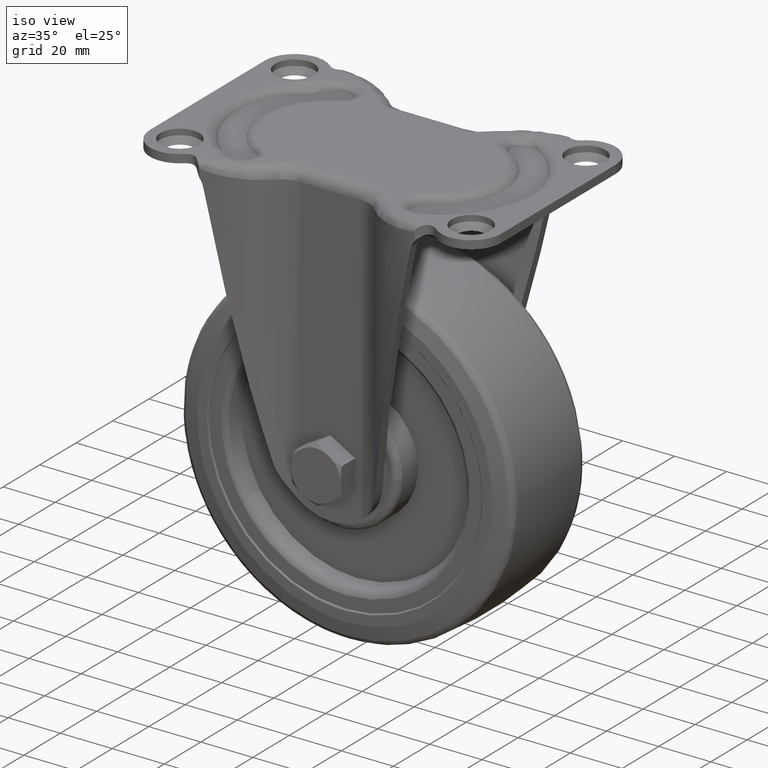
[diagram: clean part render]
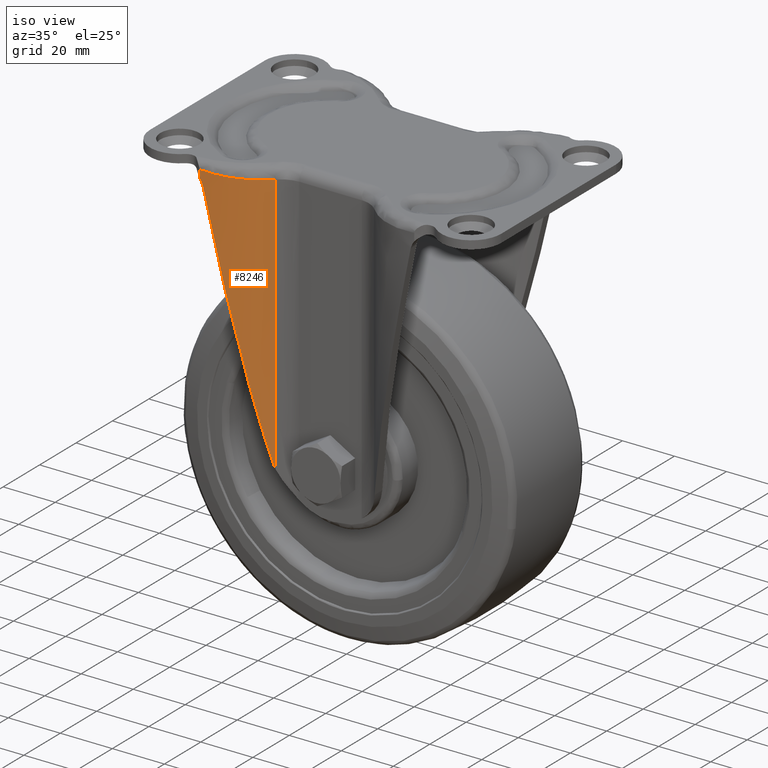
[diagram: same view with one face highlighted and labeled with its STEP entity id]
A machine part, iso view. The second image highlights one B-rep face of the part: STEP entity #8246.
In plain terms, the highlighted face is a freeform B-spline surface patch.
Its self-contained STEP definition (entity closure, byte-faithful):
#7388=CARTESIAN_POINT('',(-18.914965390891851,-31.823452248050199,-4.200000000000000));
#7389=VERTEX_POINT('',#7388);
#7491=CARTESIAN_POINT('',(-41.310867333052400,-41.797070675534847,-2.800198280679345));
#7492=VERTEX_POINT('',#7491);
#7514=CARTESIAN_POINT('',(-18.914965390891911,-31.823452248050259,-4.199999999999982));
#7515=CARTESIAN_POINT('',(-19.101243871176429,-32.017102293881948,-4.199561485473680));
#7516=CARTESIAN_POINT('',(-19.477094927134271,-32.407826837591763,-4.198676701855563));
#7517=CARTESIAN_POINT('',(-20.064583392333681,-32.980509663479623,-4.191676817001331));
#7518=CARTESIAN_POINT('',(-20.676044861581790,-33.548550968283926,-4.180550208738623));
#7519=CARTESIAN_POINT('',(-21.313210783172540,-34.109430840929143,-4.164868415524790));
#7520=CARTESIAN_POINT('',(-21.975999065536438,-34.662267026926109,-4.144749172649266));
#7521=CARTESIAN_POINT('',(-22.664770108009481,-35.205673708321598,-4.120160072730545));
#7522=CARTESIAN_POINT('',(-23.379702343977030,-35.738351044805029,-4.091109947509523));
#7523=CARTESIAN_POINT('',(-24.120959428648469,-36.258924405306992,-4.057596386591934));
#7524=CARTESIAN_POINT('',(-24.888639802438309,-36.765989994511827,-4.019619750141743));
#7525=CARTESIAN_POINT('',(-25.682786126563808,-37.258104145430011,-3.977180857869809));
#7526=CARTESIAN_POINT('',(-26.503377588531720,-37.733788100087423,-3.930275754114403));
#7527=CARTESIAN_POINT('',(-27.350329316179199,-38.191529886313077,-3.878919555587773));
#7528=CARTESIAN_POINT('',(-28.223480483671288,-38.629783344951200,-3.823054358341264));
#7529=CARTESIAN_POINT('',(-29.082561679712491,-39.028395876013022,-3.765580982831344));
#7530=CARTESIAN_POINT('',(-29.947190000443449,-39.399379599473463,-3.704750762968901));
#7531=CARTESIAN_POINT('',(-30.838507194942132,-39.751973887499993,-3.639331684461013));
#7532=CARTESIAN_POINT('',(-31.820966778610519,-40.105498291154483,-3.565129634185988));
#7533=CARTESIAN_POINT('',(-32.896353940262827,-40.451688185386132,-3.482077437207524));
#7534=CARTESIAN_POINT('',(-34.066101928935041,-40.781509457696629,-3.390191203409684));
#7535=CARTESIAN_POINT('',(-35.331167774244392,-41.085002397154760,-3.289460828943050));
#7536=CARTESIAN_POINT('',(-36.691881871147061,-41.351930530363667,-3.179894048886446));
#7537=CARTESIAN_POINT('',(-38.147866214872323,-41.569188180103239,-3.061456442268572));
#7538=CARTESIAN_POINT('',(-39.697618785207602,-41.731516691229942,-2.934279107681306));
#7539=CARTESIAN_POINT('',(-40.763602704257963,-41.774832500071973,-2.845682713204060));
#7540=CARTESIAN_POINT('',(-41.310867340985411,-41.797070368736648,-2.800198280678901));
#7541=B_SPLINE_CURVE_WITH_KNOTS('',3,(#7514,#7515,#7516,#7517,#7518,#7519,#7520,#7521,#7522,#7523,#7524,#7525,#7526,#7527,#7528,#7529,#7530,#7531,#7532,#7533,#7534,#7535,#7536,#7537,#7538,#7539,#7540),.UNSPECIFIED.,.F.,.U.,(4,1,1,1,1,1,1,1,1,1,1,1,1,1,1,1,1,1,1,1,1,1,1,1,4),(0.0,0.031980641783678,0.064526820093473,0.097639447778954,0.131319391522333,0.165567474827480,0.200384480775887,0.235771154570601,0.271728205886964,0.308256311047130,0.345356115033680,0.383028233356102,0.421273253782662,0.460091737948880,0.499484222852880,0.534186033125699,0.572298396880296,0.613821625945798,0.658755939681618,0.707101489366715,0.758858374554631,0.814026654373492,0.872606355536522,0.934597478148826,1.0),.UNSPECIFIED.);
#7542=EDGE_CURVE('',#7389,#7492,#7541,.T.);
#8139=CARTESIAN_POINT('',(-18.914965390891851,-31.823452248050199,-104.978530906988400));
#8140=VERTEX_POINT('',#8139);
#8141=CARTESIAN_POINT('',(-18.914965390891851,-31.823452248050199,-104.978530906988400));
#8142=CARTESIAN_POINT('',(-18.914965390891851,-31.823452248050199,-4.200000000000000));
#8143=QUASI_UNIFORM_CURVE('',1,(#8141,#8142),.UNSPECIFIED.,.F.,.U.);
#8144=EDGE_CURVE('',#8140,#7389,#8143,.T.);
#8178=CARTESIAN_POINT('',(-18.346619759601460,-31.207999818164762,-107.532989222646090));
#8179=CARTESIAN_POINT('',(-18.346619759601460,-31.207999818164762,-0.181878507130179));
#8180=CARTESIAN_POINT('',(-28.040559294435532,-41.985086183010978,-107.532989222646140));
#8181=CARTESIAN_POINT('',(-28.040559294435532,-41.985086183010978,-0.181878507130179));
#8182=CARTESIAN_POINT('',(-42.534893751827660,-41.805300595078613,-107.532989222646140));
#8183=CARTESIAN_POINT('',(-42.534893751827660,-41.805300595078613,-0.181878507130179));
#8191=(BOUNDED_SURFACE()B_SPLINE_SURFACE(1,2,((#8178,#8180,#8182),(#8179,#8181,#8183)),.UNSPECIFIED.,.F.,.F.,.U.)B_SPLINE_SURFACE_WITH_KNOTS((2,2),(3,3),(0.0,107.351110715515900),(0.0,27.639123101659401),.UNSPECIFIED.)GEOMETRIC_REPRESENTATION_ITEM()RATIONAL_B_SPLINE_SURFACE(((1.0,0.908740740005340,0.995260449497306),(1.0,0.908740740005340,0.995260449497306)))REPRESENTATION_ITEM('')SURFACE());
#8192=ORIENTED_EDGE('',*,*,#8144,.T.);
#8193=ORIENTED_EDGE('',*,*,#7542,.T.);
#8194=CARTESIAN_POINT('',(-41.310867333052400,-41.797070675534847,-5.722019499202480));
#8195=VERTEX_POINT('',#8194);
#8196=CARTESIAN_POINT('',(-41.310867333052400,-41.797070675534847,-5.722019499202480));
#8197=CARTESIAN_POINT('',(-41.310867333052400,-41.797070675534847,-2.800198280679345));
#8198=QUASI_UNIFORM_CURVE('',1,(#8196,#8197),.UNSPECIFIED.,.F.,.U.);
#8199=EDGE_CURVE('',#8195,#7492,#8198,.T.);
#8200=ORIENTED_EDGE('',*,*,#8199,.F.);
#8201=CARTESIAN_POINT('',(-39.852367746824399,-41.726030759943349,-8.702546398791869));
#8202=VERTEX_POINT('',#8201);
#8203=CARTESIAN_POINT('',(-41.310867333052400,-41.797070675534847,-5.722019499202480));
#8204=CARTESIAN_POINT('',(-41.130624944631791,-41.792410194182168,-5.937926853610226));
#8205=CARTESIAN_POINT('',(-40.965153126909797,-41.786619665539270,-6.162403671757393));
#8206=CARTESIAN_POINT('',(-40.662796586488852,-41.774098637877380,-6.627974879878298));
#8207=CARTESIAN_POINT('',(-40.525915783973467,-41.767365100116429,-6.869071473615648));
#8208=CARTESIAN_POINT('',(-40.342237565091793,-41.757394256040463,-7.243319036888170));
#8209=CARTESIAN_POINT('',(-40.284627709577627,-41.754090934771817,-7.370173907316629));
#8210=CARTESIAN_POINT('',(-40.176786198016529,-41.747651792133517,-7.628183141693225));
#8211=CARTESIAN_POINT('',(-40.126449318008738,-41.744508955231069,-7.759665904759731));
#8212=CARTESIAN_POINT('',(-39.987911502786723,-41.735581896846888,-8.157549848369124));
#8213=CARTESIAN_POINT('',(-39.911929278828140,-41.730295918546737,-8.427627339492297));
#8214=CARTESIAN_POINT('',(-39.852367746824399,-41.726030759943349,-8.702546398791869));
#8215=B_SPLINE_CURVE_WITH_KNOTS('',3,(#8203,#8204,#8205,#8206,#8207,#8208,#8209,#8210,#8211,#8212,#8213,#8214),.UNSPECIFIED.,.F.,.U.,(4,2,2,2,2,4),(0.0,0.250000000000001,0.500000000000003,0.625000000000002,0.750000000000001,1.0),.UNSPECIFIED.);
#8216=EDGE_CURVE('',#8195,#8202,#8215,.T.);
#8217=ORIENTED_EDGE('',*,*,#8216,.T.);
#8218=CARTESIAN_POINT('',(-19.360835006099300,-32.284432333621197,-103.285781091033600));
#8219=VERTEX_POINT('',#8218);
#8220=CARTESIAN_POINT('',(-39.852367746824427,-41.726030759943377,-8.702546398791887));
#8221=CARTESIAN_POINT('',(-27.828193067694727,-40.864992409295084,-64.202803507250181));
#8222=CARTESIAN_POINT('',(-19.360835006099322,-32.284432333621332,-103.285781091033600));
#8230=(BOUNDED_CURVE()B_SPLINE_CURVE(2,(#8220,#8221,#8222),.UNSPECIFIED.,.F.,.U.)CURVE()GEOMETRIC_REPRESENTATION_ITEM()QUASI_UNIFORM_CURVE()RATIONAL_B_SPLINE_CURVE((1.0,0.935799669668110,1.0))REPRESENTATION_ITEM(''));
#8231=EDGE_CURVE('',#8202,#8219,#8230,.T.);
#8232=ORIENTED_EDGE('',*,*,#8231,.T.);
#8233=CARTESIAN_POINT('',(-18.914965390891879,-31.823452248050231,-104.978530906988400));
#8234=CARTESIAN_POINT('',(-18.999962360147329,-31.913110470047620,-104.705448603388310));
#8235=CARTESIAN_POINT('',(-19.079868987500920,-31.996362653923239,-104.427892934350400));
#8236=CARTESIAN_POINT('',(-19.191553372013459,-32.111649642681243,-104.004658006464790));
#8237=CARTESIAN_POINT('',(-19.227418355867432,-32.148478877000819,-103.862428763914100));
#8238=CARTESIAN_POINT('',(-19.296324239287578,-32.218925076267773,-103.575627273577200));
#8239=CARTESIAN_POINT('',(-19.329416719209931,-32.252594008589092,-103.430799193880600));
#8240=CARTESIAN_POINT('',(-19.360835006099311,-32.284432333621290,-103.285781091033600));
#8241=B_SPLINE_CURVE_WITH_KNOTS('',3,(#8233,#8234,#8235,#8236,#8237,#8238,#8239,#8240),.UNSPECIFIED.,.F.,.U.,(4,2,2,4),(0.0,0.499999999999990,0.749999999999995,1.0),.UNSPECIFIED.);
#8242=EDGE_CURVE('',#8140,#8219,#8241,.T.);
#8243=ORIENTED_EDGE('',*,*,#8242,.F.);
#8244=EDGE_LOOP('',(#8192,#8193,#8200,#8217,#8232,#8243));
#8245=FACE_OUTER_BOUND('',#8244,.T.);
#8246=ADVANCED_FACE('',(#8245),#8191,.T.);